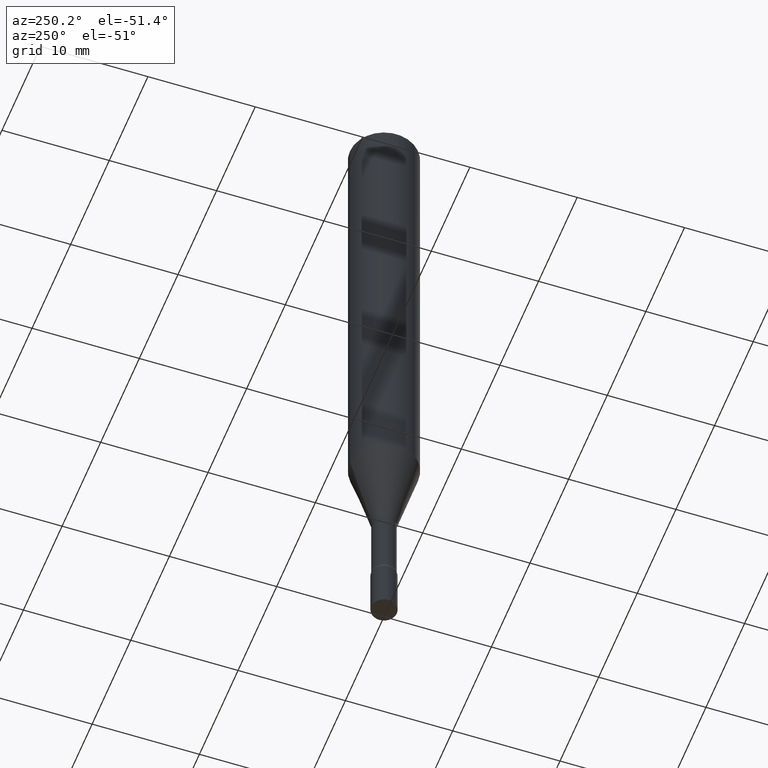
[diagram: clean part render]
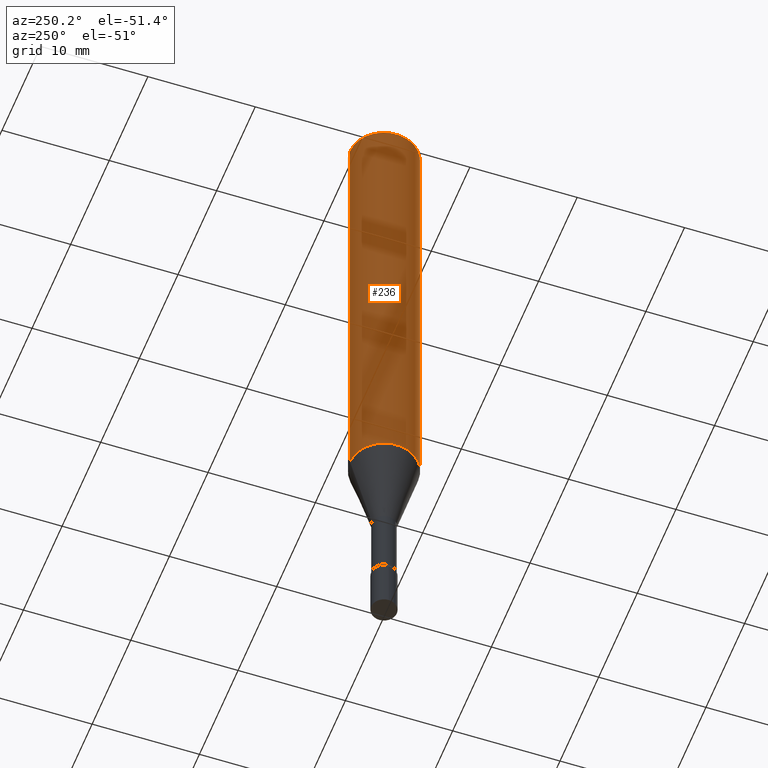
[diagram: same view with one face highlighted and labeled with its STEP entity id]
A machine part, auxiliary view. The second image highlights one B-rep face of the part: STEP entity #236.
In plain terms, the highlighted cylindrical surface (edge-blend (fillet) strip) has radius 3.175 mm, axis along (-0, 0, 1).
Its self-contained STEP definition (entity closure, byte-faithful):
#4 = ORIENTED_EDGE ( 'NONE', *, *, #489, .F. ) ;
#33 = DIRECTION ( 'NONE',  ( -2.445616737647772983E-29, 3.491269492568914221E-15, 1.000000000000000000 ) ) ;
#35 = DIRECTION ( 'NONE',  ( -2.445616737647772983E-29, 3.491269492568914221E-15, 1.000000000000000000 ) ) ;
#40 = EDGE_CURVE ( 'NONE', #461, #263, #472, .T. ) ;
#57 = ORIENTED_EDGE ( 'NONE', *, *, #40, .T. ) ;
#76 = CARTESIAN_POINT ( 'NONE',  ( 4.238442338125165839E-29, -6.050639171426887853E-15, -1.733077089667678816 ) ) ;
#91 = DIRECTION ( 'NONE',  ( -2.445616737647772983E-29, 3.491269492568914221E-15, 1.000000000000000000 ) ) ;
#134 = LINE ( 'NONE', #502, #442 ) ;
#173 = FACE_OUTER_BOUND ( 'NONE', #468, .T. ) ;
#183 = DIRECTION ( 'NONE',  ( -2.445616737647772983E-29, 3.491269492568914221E-15, 1.000000000000000000 ) ) ;
#196 = AXIS2_PLACEMENT_3D ( 'NONE', #422, #91, #247 ) ;
#205 = CIRCLE ( 'NONE', #303, 0.1250000000000000000 ) ;
#211 = VERTEX_POINT ( 'NONE', #412 ) ;
#217 = DIRECTION ( 'NONE',  ( -6.982962677686265922E-15, -1.000000000000000000, 3.483106191921935554E-15 ) ) ;
#236 = ADVANCED_FACE ( 'NONE', ( #173 ), #336, .T. ) ;
#237 = ORIENTED_EDGE ( 'NONE', *, *, #464, .T. ) ;
#242 = VERTEX_POINT ( 'NONE', #378 ) ;
#247 = DIRECTION ( 'NONE',  ( -6.982962677686265922E-15, -1.000000000000000000, 3.491269492568914221E-15 ) ) ;
#263 = VERTEX_POINT ( 'NONE', #328 ) ;
#274 = DIRECTION ( 'NONE',  ( -6.982962677686265922E-15, -1.000000000000000000, 4.370956789862821150E-15 ) ) ;
#301 = ORIENTED_EDGE ( 'NONE', *, *, #448, .F. ) ;
#303 = AXIS2_PLACEMENT_3D ( 'NONE', #391, #183, #217 ) ;
#312 = AXIS2_PLACEMENT_3D ( 'NONE', #76, #35, #274 ) ;
#319 = CARTESIAN_POINT ( 'NONE',  ( 8.881784197001251337E-16, 0.1250000000000000000, -4.364086865711142776E-16 ) ) ;
#328 = CARTESIAN_POINT ( 'NONE',  ( -8.728703347107405431E-16, -0.1250000000000059952, -1.733077089667678150 ) ) ;
#336 = CYLINDRICAL_SURFACE ( 'NONE', #196, 0.1250000000000000000 ) ;
#350 = CARTESIAN_POINT ( 'NONE',  ( 8.881784197001674364E-16, 0.1249999999999939770, -1.733077089667679260 ) ) ;
#378 = CARTESIAN_POINT ( 'NONE',  ( 8.881784197001678308E-16, 0.1249999999999999584, -0.01500000000000044874 ) ) ;
#391 = CARTESIAN_POINT ( 'NONE',  ( 3.668425106471662575E-31, -5.236904238853375768E-17, -0.01500000000000001332 ) ) ;
#400 = LINE ( 'NONE', #319, #409 ) ;
#409 = VECTOR ( 'NONE', #33, 39.37007874015748143 ) ;
#412 = CARTESIAN_POINT ( 'NONE',  ( -8.728703347107828458E-16, -0.1250000000000000555, -0.01499999999999957791 ) ) ;
#422 = CARTESIAN_POINT ( 'NONE',  ( 0.000000000000000000, 0.000000000000000000, 0.000000000000000000 ) ) ;
#442 = VECTOR ( 'NONE', #462, 39.37007874015748143 ) ;
#448 = EDGE_CURVE ( 'NONE', #242, #211, #205, .T. ) ;
#461 = VERTEX_POINT ( 'NONE', #350 ) ;
#462 = DIRECTION ( 'NONE',  ( -2.445616737647772983E-29, 3.491269492568914221E-15, 1.000000000000000000 ) ) ;
#464 = EDGE_CURVE ( 'NONE', #263, #211, #134, .T. ) ;
#468 = EDGE_LOOP ( 'NONE', ( #4, #57, #237, #301 ) ) ;
#472 = CIRCLE ( 'NONE', #312, 0.1250000000000000000 ) ;
#489 = EDGE_CURVE ( 'NONE', #461, #242, #400, .T. ) ;
#502 = CARTESIAN_POINT ( 'NONE',  ( -8.728703347107832402E-16, -0.1250000000000000000, 4.364086865711142776E-16 ) ) ;